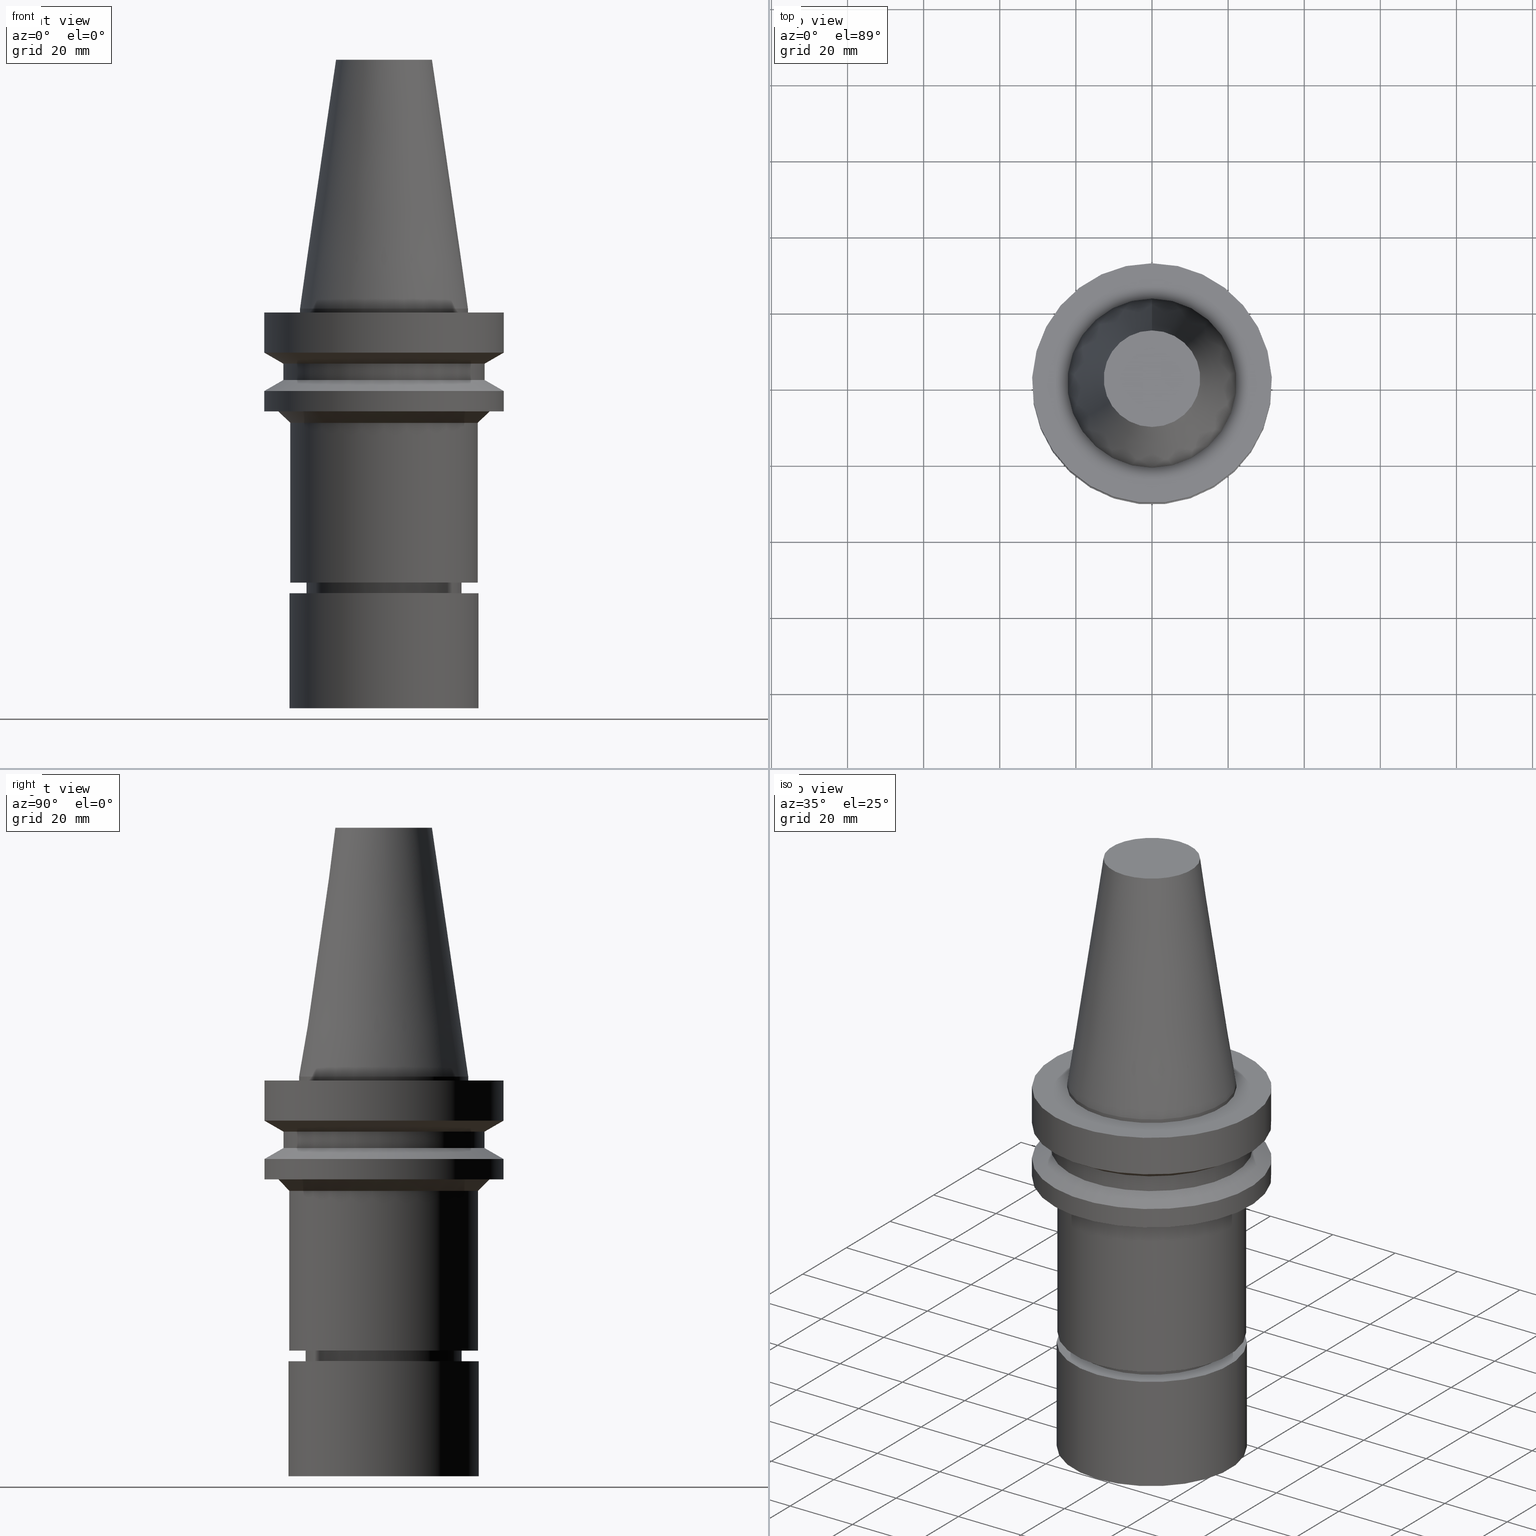
[diagram: canonical four-view strip — front | top / right | iso, engineering-drawing reading convention]
A machine part, canonical four-view strip (front | top / right | iso — engineering-drawing reading convention). The complete STEP part file that produces these views, byte-faithful:
ISO-10303-21;
HEADER;
FILE_DESCRIPTION((''),'1');
FILE_NAME('V:/90_\X2\53D65F9730C730FC30BF\X0\/00_\X2\6DE18DEF30C730FC30BF\X0\/ALL/BBT-BKUS\X2\FF76FF80FF9BFF78FF9E752852A05DE556F3\X0\201801/BBT40-MEGAER/BBT40-MEGAER32-105NL.stp','2018-02-07T02:33:56',(''),(''),'Spatial Interop R21 SP3','Kubotek KeyCreator 2011 V10.0.2 (22737)',' ');
FILE_SCHEMA(('automotive_design'));
ENDSEC;
DATA;
#1=MECHANICAL_DESIGN_GEOMETRIC_PRESENTATION_REPRESENTATION(' ',(#14,#15,#16,#17,#18,#19,#20,#21,#22,#23,#24,#25,#26,#27,#28,#29,#30,#31,#32,#33,#34,#35,#36,#37,#38,#39,#40,#41,#42,#43,#44,#45,#46,#47,#48,#49,#50,#51,#52,#53,#54,#55),#10);
#2=PRODUCT_DEFINITION_CONTEXT('',#56,'design');
#3=APPLICATION_PROTOCOL_DEFINITION('INTERNATIONAL STANDARD','automotive_design',1994,#56);
#4=PRODUCT_CATEGORY_RELATIONSHIP('NONE','NONE',#57,#58);
#5=SHAPE_DEFINITION_REPRESENTATION(#59,#60);
#6=PRODUCT_DEFINITION_CONTEXT('',#61,'design');
#7=APPLICATION_PROTOCOL_DEFINITION('INTERNATIONAL STANDARD','automotive_design',1994,#61);
#8=PRODUCT_CATEGORY_RELATIONSHIP('NONE','NONE',#62,#63);
#9=SHAPE_DEFINITION_REPRESENTATION(#64,#65);
#10= (GEOMETRIC_REPRESENTATION_CONTEXT(3)GLOBAL_UNCERTAINTY_ASSIGNED_CONTEXT((#68))GLOBAL_UNIT_ASSIGNED_CONTEXT((#70,#71,#72))REPRESENTATION_CONTEXT('NONE','WORKSPACE'));
#14=STYLED_ITEM('',(#74,#75),#76);
#15=STYLED_ITEM('',(#77),#78);
#16=STYLED_ITEM('',(#79,#80),#81);
#17=STYLED_ITEM('',(#82,#83),#84);
#18=STYLED_ITEM('',(#85,#86),#87);
#19=STYLED_ITEM('',(#88),#89);
#20=STYLED_ITEM('',(#90),#91);
#21=STYLED_ITEM('',(#92),#93);
#22=STYLED_ITEM('',(#94),#95);
#23=STYLED_ITEM('',(#96),#97);
#24=STYLED_ITEM('',(#98,#99),#100);
#25=STYLED_ITEM('',(#101,#102),#103);
#26=STYLED_ITEM('',(#104,#105),#106);
#27=STYLED_ITEM('',(#107),#108);
#28=STYLED_ITEM('',(#109,#110),#111);
#29=STYLED_ITEM('',(#112,#113),#114);
#30=STYLED_ITEM('',(#115,#116),#117);
#31=STYLED_ITEM('',(#118,#119),#120);
#32=STYLED_ITEM('',(#121,#122),#123);
#33=STYLED_ITEM('',(#124,#125),#126);
#34=STYLED_ITEM('',(#127),#128);
#35=STYLED_ITEM('',(#129,#130),#131);
#36=STYLED_ITEM('',(#132),#133);
#37=STYLED_ITEM('',(#134,#135),#136);
#38=STYLED_ITEM('',(#137,#138),#139);
#39=STYLED_ITEM('',(#140),#141);
#40=STYLED_ITEM('',(#142),#143);
#41=STYLED_ITEM('',(#144),#145);
#42=STYLED_ITEM('',(#146,#147),#148);
#43=STYLED_ITEM('',(#149,#150),#151);
#44=STYLED_ITEM('',(#152,#153),#154);
#45=STYLED_ITEM('',(#155,#156),#157);
#46=STYLED_ITEM('',(#158),#159);
#47=STYLED_ITEM('',(#160,#161),#162);
#48=STYLED_ITEM('',(#163,#164),#165);
#49=STYLED_ITEM('',(#166),#167);
#50=STYLED_ITEM('',(#168,#169),#170);
#51=STYLED_ITEM('',(#171),#172);
#52=STYLED_ITEM('',(#173),#174);
#53=STYLED_ITEM('',(#175),#176);
#54=STYLED_ITEM('',(#177),#178);
#55=STYLED_ITEM('',(#179),#180);
#56=APPLICATION_CONTEXT(' ');
#57=PRODUCT_CATEGORY('part','NONE');
#58=PRODUCT_RELATED_PRODUCT_CATEGORY('detail',' ',(#181));
#59=PRODUCT_DEFINITION_SHAPE('NONE','NONE',#182);
#60=ADVANCED_BREP_SHAPE_REPRESENTATION('Unnamed[1]',(#120,#183),#10);
#61=APPLICATION_CONTEXT(' ');
#62=PRODUCT_CATEGORY('part','NONE');
#63=PRODUCT_RELATED_PRODUCT_CATEGORY('detail',' ',(#184));
#64=PRODUCT_DEFINITION_SHAPE('NONE','NONE',#185);
#65=ADVANCED_BREP_SHAPE_REPRESENTATION('Unnamed[1]',(#76,#186),#10);
#68=UNCERTAINTY_MEASURE_WITH_UNIT(LENGTH_MEASURE(1.0E-006),#70,'','');
#70= (CONVERSION_BASED_UNIT('MILLIMETRE',#189)LENGTH_UNIT()NAMED_UNIT(#192));
#71= (NAMED_UNIT(#194)PLANE_ANGLE_UNIT()SI_UNIT($,.RADIAN.));
#72= (NAMED_UNIT(#194)SOLID_ANGLE_UNIT()SI_UNIT($,.STERADIAN.));
#74=PRESENTATION_STYLE_ASSIGNMENT((#200));
#75=PRESENTATION_STYLE_ASSIGNMENT((#201));
#76=MANIFOLD_SOLID_BREP('Unnamed[1]',#202);
#77=PRESENTATION_STYLE_ASSIGNMENT((#203));
#78=EDGE_CURVE('Unnamed[1]',#204,#204,#205,.T.);
#79=PRESENTATION_STYLE_ASSIGNMENT((#206));
#80=PRESENTATION_STYLE_ASSIGNMENT((#207));
#81=ADVANCED_FACE('Unnamed[1]',(#208,#209),#210,.T.);
#82=PRESENTATION_STYLE_ASSIGNMENT((#211));
#83=PRESENTATION_STYLE_ASSIGNMENT((#212));
#84=ADVANCED_FACE('Unnamed[1]',(#213,#214),#215,.T.);
#85=PRESENTATION_STYLE_ASSIGNMENT((#216));
#86=PRESENTATION_STYLE_ASSIGNMENT((#217));
#87=ADVANCED_FACE('Unnamed[1]',(#218,#219),#220,.T.);
#88=PRESENTATION_STYLE_ASSIGNMENT((#221));
#89=EDGE_CURVE('Unnamed[1]',#222,#222,#223,.T.);
#90=PRESENTATION_STYLE_ASSIGNMENT((#224));
#91=EDGE_CURVE('Unnamed[1]',#225,#225,#226,.T.);
#92=PRESENTATION_STYLE_ASSIGNMENT((#227));
#93=EDGE_CURVE('Unnamed[1]',#228,#228,#229,.T.);
#94=PRESENTATION_STYLE_ASSIGNMENT((#230));
#95=EDGE_CURVE('Unnamed[1]',#231,#231,#232,.T.);
#96=PRESENTATION_STYLE_ASSIGNMENT((#233));
#97=EDGE_CURVE('Unnamed[1]',#234,#234,#235,.T.);
#98=PRESENTATION_STYLE_ASSIGNMENT((#236));
#99=PRESENTATION_STYLE_ASSIGNMENT((#237));
#100=ADVANCED_FACE('Unnamed[1]',(#238,#239),#240,.T.);
#101=PRESENTATION_STYLE_ASSIGNMENT((#241));
#102=PRESENTATION_STYLE_ASSIGNMENT((#242));
#103=ADVANCED_FACE('Unnamed[1]',(#243,#244),#245,.T.);
#104=PRESENTATION_STYLE_ASSIGNMENT((#246));
#105=PRESENTATION_STYLE_ASSIGNMENT((#247));
#106=ADVANCED_FACE('Unnamed[1]',(#248,#249),#250,.T.);
#107=PRESENTATION_STYLE_ASSIGNMENT((#251));
#108=EDGE_CURVE('Unnamed[1]',#252,#252,#253,.T.);
#109=PRESENTATION_STYLE_ASSIGNMENT((#254));
#110=PRESENTATION_STYLE_ASSIGNMENT((#255));
#111=ADVANCED_FACE('Unnamed[1]',(#256,#257),#258,.T.);
#112=PRESENTATION_STYLE_ASSIGNMENT((#259));
#113=PRESENTATION_STYLE_ASSIGNMENT((#260));
#114=ADVANCED_FACE('Unnamed[1]',(#261,#262),#263,.T.);
#115=PRESENTATION_STYLE_ASSIGNMENT((#264));
#116=PRESENTATION_STYLE_ASSIGNMENT((#265));
#117=ADVANCED_FACE('Unnamed[1]',(#266,#267),#268,.T.);
#118=PRESENTATION_STYLE_ASSIGNMENT((#269));
#119=PRESENTATION_STYLE_ASSIGNMENT((#270));
#120=MANIFOLD_SOLID_BREP('Unnamed[1]',#271);
#121=PRESENTATION_STYLE_ASSIGNMENT((#272));
#122=PRESENTATION_STYLE_ASSIGNMENT((#273));
#123=ADVANCED_FACE('Unnamed[1]',(#274,#275),#276,.T.);
#124=PRESENTATION_STYLE_ASSIGNMENT((#277));
#125=PRESENTATION_STYLE_ASSIGNMENT((#278));
#126=ADVANCED_FACE('Unnamed[1]',(#279,#280),#281,.T.);
#127=PRESENTATION_STYLE_ASSIGNMENT((#282));
#128=EDGE_CURVE('Unnamed[1]',#283,#283,#284,.T.);
#129=PRESENTATION_STYLE_ASSIGNMENT((#285));
#130=PRESENTATION_STYLE_ASSIGNMENT((#286));
#131=ADVANCED_FACE('Unnamed[1]',(#287),#288,.T.);
#132=PRESENTATION_STYLE_ASSIGNMENT((#289));
#133=EDGE_CURVE('Unnamed[1]',#290,#290,#291,.T.);
#134=PRESENTATION_STYLE_ASSIGNMENT((#292));
#135=PRESENTATION_STYLE_ASSIGNMENT((#293));
#136=ADVANCED_FACE('Unnamed[1]',(#294,#295),#296,.T.);
#137=PRESENTATION_STYLE_ASSIGNMENT((#297));
#138=PRESENTATION_STYLE_ASSIGNMENT((#298));
#139=ADVANCED_FACE('Unnamed[1]',(#299,#300),#301,.T.);
#140=PRESENTATION_STYLE_ASSIGNMENT((#302));
#141=EDGE_CURVE('Unnamed[1]',#303,#303,#304,.T.);
#142=PRESENTATION_STYLE_ASSIGNMENT((#305));
#143=EDGE_CURVE('Unnamed[1]',#306,#306,#307,.T.);
#144=PRESENTATION_STYLE_ASSIGNMENT((#308));
#145=EDGE_CURVE('Unnamed[1]',#309,#309,#310,.T.);
#146=PRESENTATION_STYLE_ASSIGNMENT((#311));
#147=PRESENTATION_STYLE_ASSIGNMENT((#312));
#148=ADVANCED_FACE('Unnamed[1]',(#313),#314,.T.);
#149=PRESENTATION_STYLE_ASSIGNMENT((#315));
#150=PRESENTATION_STYLE_ASSIGNMENT((#316));
#151=ADVANCED_FACE('Unnamed[1]',(#317),#318,.T.);
#152=PRESENTATION_STYLE_ASSIGNMENT((#319));
#153=PRESENTATION_STYLE_ASSIGNMENT((#320));
#154=ADVANCED_FACE('Unnamed[1]',(#321,#322),#323,.T.);
#155=PRESENTATION_STYLE_ASSIGNMENT((#324));
#156=PRESENTATION_STYLE_ASSIGNMENT((#325));
#157=ADVANCED_FACE('Unnamed[1]',(#326),#327,.T.);
#158=PRESENTATION_STYLE_ASSIGNMENT((#328));
#159=EDGE_CURVE('Unnamed[1]',#329,#329,#330,.T.);
#160=PRESENTATION_STYLE_ASSIGNMENT((#331));
#161=PRESENTATION_STYLE_ASSIGNMENT((#332));
#162=ADVANCED_FACE('Unnamed[1]',(#333,#334),#335,.T.);
#163=PRESENTATION_STYLE_ASSIGNMENT((#336));
#164=PRESENTATION_STYLE_ASSIGNMENT((#337));
#165=ADVANCED_FACE('Unnamed[1]',(#338,#339),#340,.T.);
#166=PRESENTATION_STYLE_ASSIGNMENT((#341));
#167=EDGE_CURVE('Unnamed[1]',#342,#342,#343,.T.);
#168=PRESENTATION_STYLE_ASSIGNMENT((#344));
#169=PRESENTATION_STYLE_ASSIGNMENT((#345));
#170=ADVANCED_FACE('Unnamed[1]',(#346,#347),#348,.F.);
#171=PRESENTATION_STYLE_ASSIGNMENT((#349));
#172=EDGE_CURVE('Unnamed[1]',#350,#350,#351,.T.);
#173=PRESENTATION_STYLE_ASSIGNMENT((#352));
#174=EDGE_CURVE('Unnamed[1]',#353,#353,#354,.T.);
#175=PRESENTATION_STYLE_ASSIGNMENT((#355));
#176=EDGE_CURVE('Unnamed[1]',#356,#356,#357,.T.);
#177=PRESENTATION_STYLE_ASSIGNMENT((#358));
#178=EDGE_CURVE('Unnamed[1]',#359,#359,#360,.T.);
#179=PRESENTATION_STYLE_ASSIGNMENT((#361));
#180=EDGE_CURVE('Unnamed[1]',#362,#362,#363,.T.);
#181=PRODUCT('Unnamed[1]','Unnamed[1]','PART-Unnamed[1]-DESC',(#364));
#182=PRODUCT_DEFINITION('NONE','NONE',#365,#2);
#183=AXIS2_PLACEMENT_3D('',#366,#367,#368);
#184=PRODUCT('Unnamed[1]','Unnamed[1]','PART-Unnamed[1]-DESC',(#369));
#185=PRODUCT_DEFINITION('NONE','NONE',#370,#6);
#186=AXIS2_PLACEMENT_3D('',#371,#372,#373);
#189=LENGTH_MEASURE_WITH_UNIT(LENGTH_MEASURE(1.0),#374);
#192=DIMENSIONAL_EXPONENTS(1.0,0.0,0.0,0.0,0.0,0.0,0.0);
#194=DIMENSIONAL_EXPONENTS(0.0,0.0,0.0,0.0,0.0,0.0,0.0);
#200=SURFACE_STYLE_USAGE(.BOTH.,#375);
#201=CURVE_STYLE('',#376,POSITIVE_LENGTH_MEASURE(1000.0),#377);
#202=CLOSED_SHELL('',(#157,#151,#165));
#203=CURVE_STYLE('',#378,POSITIVE_LENGTH_MEASURE(1000.0),#379);
#204=VERTEX_POINT('',#380);
#205=CIRCLE('',#381,27.8000000024396);
#206=SURFACE_STYLE_USAGE(.BOTH.,#382);
#207=CURVE_STYLE('',#383,POSITIVE_LENGTH_MEASURE(1000.0),#384);
#208=FACE_BOUND('',#385,.T.);
#209=FACE_BOUND('',#386,.T.);
#210=CONICAL_SURFACE('',#387,29.0000000000003,1.04719755119651);
#211=SURFACE_STYLE_USAGE(.BOTH.,#388);
#212=CURVE_STYLE('',#389,POSITIVE_LENGTH_MEASURE(1000.0),#390);
#213=FACE_BOUND('',#391,.T.);
#214=FACE_BOUND('',#392,.T.);
#215=CYLINDRICAL_SURFACE('',#393,26.4999999999997);
#216=SURFACE_STYLE_USAGE(.BOTH.,#394);
#217=CURVE_STYLE('',#395,POSITIVE_LENGTH_MEASURE(1000.0),#396);
#218=FACE_BOUND('',#397,.T.);
#219=FACE_BOUND('',#398,.T.);
#220=CONICAL_SURFACE('',#399,28.9999999999998,1.04719755119657);
#221=CURVE_STYLE('',#400,POSITIVE_LENGTH_MEASURE(1000.0),#401);
#222=VERTEX_POINT('',#402);
#223=CIRCLE('',#403,31.5000000000003);
#224=CURVE_STYLE('',#404,POSITIVE_LENGTH_MEASURE(1000.0),#405);
#225=VERTEX_POINT('',#406);
#226=CIRCLE('',#407,26.5);
#227=CURVE_STYLE('',#408,POSITIVE_LENGTH_MEASURE(1000.0),#409);
#228=VERTEX_POINT('',#410);
#229=CIRCLE('',#411,24.9999999999999);
#230=CURVE_STYLE('',#412,POSITIVE_LENGTH_MEASURE(1000.0),#413);
#231=VERTEX_POINT('',#414);
#232=CIRCLE('',#415,12.6875000000001);
#233=CURVE_STYLE('',#416,POSITIVE_LENGTH_MEASURE(1000.0),#417);
#234=VERTEX_POINT('',#418);
#235=CIRCLE('',#419,31.4999999999996);
#236=SURFACE_STYLE_USAGE(.BOTH.,#420);
#237=CURVE_STYLE('',#421,POSITIVE_LENGTH_MEASURE(1000.0),#422);
#238=FACE_BOUND('',#423,.T.);
#239=FACE_BOUND('',#424,.T.);
#240=CYLINDRICAL_SURFACE('',#425,31.5);
#241=SURFACE_STYLE_USAGE(.BOTH.,#426);
#242=CURVE_STYLE('',#427,POSITIVE_LENGTH_MEASURE(1000.0),#428);
#243=FACE_BOUND('',#429,.T.);
#244=FACE_BOUND('',#430,.T.);
#245=CONICAL_SURFACE('',#431,26.3000000012196,0.78539816337426);
#246=SURFACE_STYLE_USAGE(.BOTH.,#432);
#247=CURVE_STYLE('',#433,POSITIVE_LENGTH_MEASURE(1000.0),#434);
#248=FACE_BOUND('',#435,.T.);
#249=FACE_BOUND('',#436,.T.);
#250=CYLINDRICAL_SURFACE('',#437,20.499999999996);
#251=CURVE_STYLE('',#438,POSITIVE_LENGTH_MEASURE(1000.0),#439);
#252=VERTEX_POINT('',#440);
#253=CIRCLE('',#441,22.225);
#254=SURFACE_STYLE_USAGE(.BOTH.,#442);
#255=CURVE_STYLE('',#443,POSITIVE_LENGTH_MEASURE(1000.0),#444);
#256=FACE_OUTER_BOUND('',#445,.T.);
#257=FACE_BOUND('',#446,.T.);
#258=PLANE('',#447);
#259=SURFACE_STYLE_USAGE(.BOTH.,#448);
#260=CURVE_STYLE('',#449,POSITIVE_LENGTH_MEASURE(1000.0),#450);
#261=FACE_BOUND('',#451,.T.);
#262=FACE_BOUND('',#452,.T.);
#263=CYLINDRICAL_SURFACE('',#453,19.9999999999999);
#264=SURFACE_STYLE_USAGE(.BOTH.,#454);
#265=CURVE_STYLE('',#455,POSITIVE_LENGTH_MEASURE(1000.0),#456);
#266=FACE_BOUND('',#457,.T.);
#267=FACE_BOUND('',#458,.T.);
#268=CONICAL_SURFACE('',#459,19.4499999999998,0.523598775598222);
#269=SURFACE_STYLE_USAGE(.BOTH.,#460);
#270=CURVE_STYLE('',#461,POSITIVE_LENGTH_MEASURE(1000.0),#462);
#271=CLOSED_SHELL('',(#148,#154,#139,#111,#100,#87,#84,#81,#126,#170,#103,#123,#136,#106,#162,#114,#117,#131));
#272=SURFACE_STYLE_USAGE(.BOTH.,#463);
#273=CURVE_STYLE('',#464,POSITIVE_LENGTH_MEASURE(1000.0),#465);
#274=FACE_BOUND('',#466,.T.);
#275=FACE_BOUND('',#467,.T.);
#276=CYLINDRICAL_SURFACE('',#468,24.7999999999999);
#277=SURFACE_STYLE_USAGE(.BOTH.,#469);
#278=CURVE_STYLE('',#470,POSITIVE_LENGTH_MEASURE(1000.0),#471);
#279=FACE_BOUND('',#472,.T.);
#280=FACE_BOUND('',#473,.T.);
#281=CYLINDRICAL_SURFACE('',#474,31.5000000000005);
#282=CURVE_STYLE('',#475,POSITIVE_LENGTH_MEASURE(1000.0),#476);
#283=VERTEX_POINT('',#477);
#284=CIRCLE('',#478,31.5000000000006);
#285=SURFACE_STYLE_USAGE(.BOTH.,#479);
#286=CURVE_STYLE('',#480,POSITIVE_LENGTH_MEASURE(1000.0),#481);
#287=FACE_OUTER_BOUND('',#482,.T.);
#288=PLANE('',#483);
#289=CURVE_STYLE('',#484,POSITIVE_LENGTH_MEASURE(1000.0),#485);
#290=VERTEX_POINT('',#486);
#291=CIRCLE('',#487,18.8999999999996);
#292=SURFACE_STYLE_USAGE(.BOTH.,#488);
#293=CURVE_STYLE('',#489,POSITIVE_LENGTH_MEASURE(1000.0),#490);
#294=FACE_BOUND('',#491,.T.);
#295=FACE_OUTER_BOUND('',#492,.T.);
#296=PLANE('',#493);
#297=SURFACE_STYLE_USAGE(.BOTH.,#494);
#298=CURVE_STYLE('',#495,POSITIVE_LENGTH_MEASURE(1000.0),#496);
#299=FACE_BOUND('',#497,.T.);
#300=FACE_BOUND('',#498,.T.);
#301=CYLINDRICAL_SURFACE('',#499,22.225);
#302=CURVE_STYLE('',#500,POSITIVE_LENGTH_MEASURE(1000.0),#501);
#303=VERTEX_POINT('',#502);
#304=CIRCLE('',#503,26.4999999999994);
#305=CURVE_STYLE('',#504,POSITIVE_LENGTH_MEASURE(1000.0),#505);
#306=VERTEX_POINT('',#506);
#307=CIRCLE('',#507,20.5000000000011);
#308=CURVE_STYLE('',#508,POSITIVE_LENGTH_MEASURE(1000.0),#509);
#309=VERTEX_POINT('',#510);
#310=CIRCLE('',#511,22.225);
#311=SURFACE_STYLE_USAGE(.BOTH.,#512);
#312=CURVE_STYLE('',#513,POSITIVE_LENGTH_MEASURE(1000.0),#514);
#313=FACE_OUTER_BOUND('',#515,.T.);
#314=PLANE('',#516);
#315=SURFACE_STYLE_USAGE(.BOTH.,#517);
#316=CURVE_STYLE('',#518,POSITIVE_LENGTH_MEASURE(1000.0),#519);
#317=FACE_OUTER_BOUND('',#520,.T.);
#318=PLANE('',#521);
#319=SURFACE_STYLE_USAGE(.BOTH.,#522);
#320=CURVE_STYLE('',#523,POSITIVE_LENGTH_MEASURE(1000.0),#524);
#321=FACE_BOUND('',#525,.T.);
#322=FACE_BOUND('',#526,.T.);
#323=CONICAL_SURFACE('',#527,17.45625,0.144812498238936);
#324=SURFACE_STYLE_USAGE(.BOTH.,#528);
#325=CURVE_STYLE('',#529,POSITIVE_LENGTH_MEASURE(1000.0),#530);
#326=FACE_OUTER_BOUND('',#531,.T.);
#327=PLANE('',#532);
#328=CURVE_STYLE('',#533,POSITIVE_LENGTH_MEASURE(1000.0),#534);
#329=VERTEX_POINT('',#535);
#330=CIRCLE('',#536,24.7999999999997);
#331=SURFACE_STYLE_USAGE(.BOTH.,#537);
#332=CURVE_STYLE('',#538,POSITIVE_LENGTH_MEASURE(1000.0),#539);
#333=FACE_BOUND('',#540,.T.);
#334=FACE_BOUND('',#541,.T.);
#335=CONICAL_SURFACE('',#542,20.2500000000005,1.04719755120247);
#336=SURFACE_STYLE_USAGE(.BOTH.,#543);
#337=CURVE_STYLE('',#544,POSITIVE_LENGTH_MEASURE(1000.0),#545);
#338=FACE_BOUND('',#546,.T.);
#339=FACE_BOUND('',#547,.T.);
#340=CYLINDRICAL_SURFACE('',#548,24.9999999999999);
#341=CURVE_STYLE('',#549,POSITIVE_LENGTH_MEASURE(1000.0),#550);
#342=VERTEX_POINT('',#551);
#343=CIRCLE('',#552,20.499999999991);
#344=SURFACE_STYLE_USAGE(.BOTH.,#553);
#345=CURVE_STYLE('',#554,POSITIVE_LENGTH_MEASURE(1000.0),#555);
#346=FACE_BOUND('',#556,.T.);
#347=FACE_BOUND('',#557,.T.);
#348=CONICAL_SURFACE('',#558,29.65000000122,1.57075486116235);
#349=CURVE_STYLE('',#559,POSITIVE_LENGTH_MEASURE(1000.0),#560);
#350=VERTEX_POINT('',#561);
#351=CIRCLE('',#562,19.9999999999999);
#352=CURVE_STYLE('',#563,POSITIVE_LENGTH_MEASURE(1000.0),#564);
#353=VERTEX_POINT('',#565);
#354=CIRCLE('',#566,31.5000000000003);
#355=CURVE_STYLE('',#567,POSITIVE_LENGTH_MEASURE(1000.0),#568);
#356=VERTEX_POINT('',#569);
#357=CIRCLE('',#570,19.9999999999999);
#358=CURVE_STYLE('',#571,POSITIVE_LENGTH_MEASURE(1000.0),#572);
#359=VERTEX_POINT('',#573);
#360=CIRCLE('',#574,24.9999999999999);
#361=CURVE_STYLE('',#575,POSITIVE_LENGTH_MEASURE(1000.0),#576);
#362=VERTEX_POINT('',#577);
#363=CIRCLE('',#578,24.8000000000002);
#364=PRODUCT_CONTEXT('',#56,'mechanical');
#365=PRODUCT_DEFINITION_FORMATION_WITH_SPECIFIED_SOURCE(' ','NONE',#181,.NOT_KNOWN.);
#366=CARTESIAN_POINT('',(0.0,0.0,0.0));
#367=DIRECTION('',(0.0,0.0,1.0));
#368=DIRECTION('',(1.0,0.0,0.0));
#369=PRODUCT_CONTEXT('',#61,'mechanical');
#370=PRODUCT_DEFINITION_FORMATION_WITH_SPECIFIED_SOURCE(' ','NONE',#184,.NOT_KNOWN.);
#371=CARTESIAN_POINT('',(0.0,0.0,0.0));
#372=DIRECTION('',(0.0,0.0,1.0));
#373=DIRECTION('',(1.0,0.0,0.0));
#374= (NAMED_UNIT(#192)LENGTH_UNIT()SI_UNIT(.MILLI.,.METRE.));
#375=SURFACE_SIDE_STYLE('',(#580));
#376=DRAUGHTING_PRE_DEFINED_CURVE_FONT('continuous');
#377=COLOUR_RGB('',0.0,1.0,0.0);
#378=DRAUGHTING_PRE_DEFINED_CURVE_FONT('continuous');
#379=COLOUR_RGB('',0.0,1.0,0.0);
#380=CARTESIAN_POINT('',(1.65327343275269E-015,27.8000000024397,-27.0000041465632));
#381=AXIS2_PLACEMENT_3D('',#581,#582,#583);
#382=SURFACE_SIDE_STYLE('',(#584));
#383=DRAUGHTING_PRE_DEFINED_CURVE_FONT('continuous');
#384=COLOUR_RGB('',0.0,1.0,0.0);
#385=EDGE_LOOP('',(#585));
#386=EDGE_LOOP('',(#586));
#387=AXIS2_PLACEMENT_3D('',#587,#588,#589);
#388=SURFACE_SIDE_STYLE('',(#590));
#389=DRAUGHTING_PRE_DEFINED_CURVE_FONT('continuous');
#390=COLOUR_RGB('',0.0,1.0,0.0);
#391=EDGE_LOOP('',(#591));
#392=EDGE_LOOP('',(#592));
#393=AXIS2_PLACEMENT_3D('',#593,#594,#595);
#394=SURFACE_SIDE_STYLE('',(#596));
#395=DRAUGHTING_PRE_DEFINED_CURVE_FONT('continuous');
#396=COLOUR_RGB('',0.0,1.0,0.0);
#397=EDGE_LOOP('',(#597));
#398=EDGE_LOOP('',(#598));
#399=AXIS2_PLACEMENT_3D('',#599,#600,#601);
#400=DRAUGHTING_PRE_DEFINED_CURVE_FONT('continuous');
#401=COLOUR_RGB('',0.0,1.0,0.0);
#402=CARTESIAN_POINT('',(7.08182973902924E-016,31.5000000000004,-11.5655056526664));
#403=AXIS2_PLACEMENT_3D('',#602,#603,#604);
#404=DRAUGHTING_PRE_DEFINED_CURVE_FONT('continuous');
#405=COLOUR_RGB('',0.0,1.0,0.0);
#406=CARTESIAN_POINT('',(1.1479681728942E-015,26.5,-18.7477430013855));
#407=AXIS2_PLACEMENT_3D('',#605,#606,#607);
#408=DRAUGHTING_PRE_DEFINED_CURVE_FONT('continuous');
#409=COLOUR_RGB('',0.0,1.0,0.0);
#410=CARTESIAN_POINT('',(4.5801790288111E-015,25.0,-74.8));
#411=AXIS2_PLACEMENT_3D('',#608,#609,#610);
#412=DRAUGHTING_PRE_DEFINED_CURVE_FONT('continuous');
#413=COLOUR_RGB('',0.0,1.0,0.0);
#414=CARTESIAN_POINT('',(-4.00459503321185E-015,12.6875000000002,65.4000000000001));
#415=AXIS2_PLACEMENT_3D('',#611,#612,#613);
#416=DRAUGHTING_PRE_DEFINED_CURVE_FONT('continuous');
#417=COLOUR_RGB('',0.0,1.0,0.0);
#418=CARTESIAN_POINT('',(6.12323399573568E-017,31.4999999999997,-0.999999999999825));
#419=AXIS2_PLACEMENT_3D('',#614,#615,#616);
#420=SURFACE_SIDE_STYLE('',(#617));
#421=DRAUGHTING_PRE_DEFINED_CURVE_FONT('continuous');
#422=COLOUR_RGB('',0.0,1.0,0.0);
#423=EDGE_LOOP('',(#618));
#424=EDGE_LOOP('',(#619));
#425=AXIS2_PLACEMENT_3D('',#620,#621,#622);
#426=SURFACE_SIDE_STYLE('',(#623));
#427=DRAUGHTING_PRE_DEFINED_CURVE_FONT('continuous');
#428=COLOUR_RGB('',0.0,1.0,0.0);
#429=EDGE_LOOP('',(#624));
#430=EDGE_LOOP('',(#625));
#431=AXIS2_PLACEMENT_3D('',#626,#627,#628);
#432=SURFACE_SIDE_STYLE('',(#629));
#433=DRAUGHTING_PRE_DEFINED_CURVE_FONT('continuous');
#434=COLOUR_RGB('',0.0,1.0,0.0);
#435=EDGE_LOOP('',(#630));
#436=EDGE_LOOP('',(#631));
#437=AXIS2_PLACEMENT_3D('',#632,#633,#634);
#438=DRAUGHTING_PRE_DEFINED_CURVE_FONT('continuous');
#439=COLOUR_RGB('',0.0,1.0,0.0);
#440=CARTESIAN_POINT('',(6.12323399573622E-017,22.2250000000001,-0.999999999999912));
#441=AXIS2_PLACEMENT_3D('',#635,#636,#637);
#442=SURFACE_SIDE_STYLE('',(#638));
#443=DRAUGHTING_PRE_DEFINED_CURVE_FONT('continuous');
#444=COLOUR_RGB('',0.0,1.0,0.0);
#445=EDGE_LOOP('',(#639));
#446=EDGE_LOOP('',(#640));
#447=AXIS2_PLACEMENT_3D('',#641,#642,#643);
#448=SURFACE_SIDE_STYLE('',(#644));
#449=DRAUGHTING_PRE_DEFINED_CURVE_FONT('continuous');
#450=COLOUR_RGB('',0.0,1.0,0.0);
#451=EDGE_LOOP('',(#645));
#452=EDGE_LOOP('',(#646));
#453=AXIS2_PLACEMENT_3D('',#647,#648,#649);
#454=SURFACE_SIDE_STYLE('',(#650));
#455=DRAUGHTING_PRE_DEFINED_CURVE_FONT('continuous');
#456=COLOUR_RGB('',0.0,1.0,0.0);
#457=EDGE_LOOP('',(#651));
#458=EDGE_LOOP('',(#652));
#459=AXIS2_PLACEMENT_3D('',#653,#654,#655);
#460=SURFACE_SIDE_STYLE('',(#656));
#461=DRAUGHTING_PRE_DEFINED_CURVE_FONT('continuous');
#462=COLOUR_RGB('',0.0,1.0,0.0);
#463=SURFACE_SIDE_STYLE('',(#657));
#464=DRAUGHTING_PRE_DEFINED_CURVE_FONT('continuous');
#465=COLOUR_RGB('',0.0,1.0,0.0);
#466=EDGE_LOOP('',(#658));
#467=EDGE_LOOP('',(#659));
#468=AXIS2_PLACEMENT_3D('',#660,#661,#662);
#469=SURFACE_SIDE_STYLE('',(#663));
#470=DRAUGHTING_PRE_DEFINED_CURVE_FONT('continuous');
#471=COLOUR_RGB('',0.0,1.0,0.0);
#472=EDGE_LOOP('',(#664));
#473=EDGE_LOOP('',(#665));
#474=AXIS2_PLACEMENT_3D('',#666,#667,#668);
#475=DRAUGHTING_PRE_DEFINED_CURVE_FONT('continuous');
#476=COLOUR_RGB('',0.0,1.0,0.0);
#477=CARTESIAN_POINT('',(1.32473071268174E-015,31.5000000000007,-21.6344943473346));
#478=AXIS2_PLACEMENT_3D('',#669,#670,#671);
#479=SURFACE_SIDE_STYLE('',(#672));
#480=DRAUGHTING_PRE_DEFINED_CURVE_FONT('continuous');
#481=COLOUR_RGB('',0.0,1.0,0.0);
#482=EDGE_LOOP('',(#673));
#483=AXIS2_PLACEMENT_3D('',#674,#675,#676);
#484=DRAUGHTING_PRE_DEFINED_CURVE_FONT('continuous');
#485=COLOUR_RGB('',0.0,1.0,0.0);
#486=CARTESIAN_POINT('',(5.75583995599257E-015,18.8999999999997,-94.0000000000001));
#487=AXIS2_PLACEMENT_3D('',#677,#678,#679);
#488=SURFACE_SIDE_STYLE('',(#680));
#489=DRAUGHTING_PRE_DEFINED_CURVE_FONT('continuous');
#490=COLOUR_RGB('',0.0,1.0,0.0);
#491=EDGE_LOOP('',(#681));
#492=EDGE_LOOP('',(#682));
#493=AXIS2_PLACEMENT_3D('',#683,#684,#685);
#494=SURFACE_SIDE_STYLE('',(#686));
#495=DRAUGHTING_PRE_DEFINED_CURVE_FONT('continuous');
#496=COLOUR_RGB('',0.0,1.0,0.0);
#497=EDGE_LOOP('',(#687));
#498=EDGE_LOOP('',(#688));
#499=AXIS2_PLACEMENT_3D('',#689,#690,#691);
#500=DRAUGHTING_PRE_DEFINED_CURVE_FONT('continuous');
#501=COLOUR_RGB('',0.0,1.0,0.0);
#502=CARTESIAN_POINT('',(8.8494551369045E-016,26.4999999999995,-14.4522569986152));
#503=AXIS2_PLACEMENT_3D('',#692,#693,#694);
#504=DRAUGHTING_PRE_DEFINED_CURVE_FONT('continuous');
#505=COLOUR_RGB('',0.0,1.0,0.0);
#506=CARTESIAN_POINT('',(4.78907208101742E-015,20.5000000000011,-78.211482434801));
#507=AXIS2_PLACEMENT_3D('',#695,#696,#697);
#508=DRAUGHTING_PRE_DEFINED_CURVE_FONT('continuous');
#509=COLOUR_RGB('',0.0,1.0,0.0);
#510=CARTESIAN_POINT('',(1.71319921032766E-029,22.2250000000001,-2.8153873565375E-013));
#511=AXIS2_PLACEMENT_3D('',#698,#699,#700);
#512=SURFACE_SIDE_STYLE('',(#701));
#513=DRAUGHTING_PRE_DEFINED_CURVE_FONT('continuous');
#514=COLOUR_RGB('',0.0,1.0,0.0);
#515=EDGE_LOOP('',(#702));
#516=AXIS2_PLACEMENT_3D('',#703,#704,#705);
#517=SURFACE_SIDE_STYLE('',(#706));
#518=DRAUGHTING_PRE_DEFINED_CURVE_FONT('continuous');
#519=COLOUR_RGB('',0.0,1.0,0.0);
#520=EDGE_LOOP('',(#707));
#521=AXIS2_PLACEMENT_3D('',#708,#709,#710);
#522=SURFACE_SIDE_STYLE('',(#711));
#523=DRAUGHTING_PRE_DEFINED_CURVE_FONT('continuous');
#524=COLOUR_RGB('',0.0,1.0,0.0);
#525=EDGE_LOOP('',(#712));
#526=EDGE_LOOP('',(#713));
#527=AXIS2_PLACEMENT_3D('',#714,#715,#716);
#528=SURFACE_SIDE_STYLE('',(#717));
#529=DRAUGHTING_PRE_DEFINED_CURVE_FONT('continuous');
#530=COLOUR_RGB('',0.0,1.0,0.0);
#531=EDGE_LOOP('',(#718));
#532=AXIS2_PLACEMENT_3D('',#719,#720,#721);
#533=DRAUGHTING_PRE_DEFINED_CURVE_FONT('continuous');
#534=COLOUR_RGB('',0.0,1.0,0.0);
#535=CARTESIAN_POINT('',(1.83697045278272E-015,24.7999999999998,-30.0000041491422));
#536=AXIS2_PLACEMENT_3D('',#722,#723,#724);
#537=SURFACE_SIDE_STYLE('',(#725));
#538=DRAUGHTING_PRE_DEFINED_CURVE_FONT('continuous');
#539=COLOUR_RGB('',0.0,1.0,0.0);
#540=EDGE_LOOP('',(#726));
#541=EDGE_LOOP('',(#727));
#542=AXIS2_PLACEMENT_3D('',#728,#729,#730);
#543=SURFACE_SIDE_STYLE('',(#731));
#544=DRAUGHTING_PRE_DEFINED_CURVE_FONT('continuous');
#545=COLOUR_RGB('',0.0,1.0,0.0);
#546=EDGE_LOOP('',(#732));
#547=EDGE_LOOP('',(#733));
#548=AXIS2_PLACEMENT_3D('',#734,#735,#736);
#549=DRAUGHTING_PRE_DEFINED_CURVE_FONT('continuous');
#550=COLOUR_RGB('',0.0,1.0,0.0);
#551=CARTESIAN_POINT('',(4.40873812527381E-015,20.4999999999911,-72.0001575694044));
#552=AXIS2_PLACEMENT_3D('',#737,#738,#739);
#553=SURFACE_SIDE_STYLE('',(#740));
#554=DRAUGHTING_PRE_DEFINED_CURVE_FONT('continuous');
#555=COLOUR_RGB('',0.0,1.0,0.0);
#556=EDGE_LOOP('',(#741));
#557=EDGE_LOOP('',(#742));
#558=AXIS2_PLACEMENT_3D('',#743,#744,#745);
#559=DRAUGHTING_PRE_DEFINED_CURVE_FONT('continuous');
#560=COLOUR_RGB('',0.0,1.0,0.0);
#561=CARTESIAN_POINT('',(5.63917667973277E-015,20.0,-92.0947441116734));
#562=AXIS2_PLACEMENT_3D('',#746,#747,#748);
#563=DRAUGHTING_PRE_DEFINED_CURVE_FONT('continuous');
#564=COLOUR_RGB('',0.0,1.0,0.0);
#565=CARTESIAN_POINT('',(1.65328282719222E-015,31.5000000000004,-27.0001575694036));
#566=AXIS2_PLACEMENT_3D('',#749,#750,#751);
#567=DRAUGHTING_PRE_DEFINED_CURVE_FONT('continuous');
#568=COLOUR_RGB('',0.0,1.0,0.0);
#569=CARTESIAN_POINT('',(4.80674833499597E-015,20.0,-78.5001575693925));
#570=AXIS2_PLACEMENT_3D('',#752,#753,#754);
#571=DRAUGHTING_PRE_DEFINED_CURVE_FONT('continuous');
#572=COLOUR_RGB('',0.0,1.0,0.0);
#573=CARTESIAN_POINT('',(6.4293956955236E-015,25.0,-105.0));
#574=AXIS2_PLACEMENT_3D('',#755,#756,#757);
#575=DRAUGHTING_PRE_DEFINED_CURVE_FONT('continuous');
#576=COLOUR_RGB('',0.0,1.0,0.0);
#577=CARTESIAN_POINT('',(4.40873812527379E-015,24.8000000000003,-72.0001575694041));
#578=AXIS2_PLACEMENT_3D('',#758,#759,#760);
#580=SURFACE_STYLE_FILL_AREA(#761);
#581=CARTESIAN_POINT('',(1.6532734327527E-015,7.5399965903523E-014,-27.0000041465632));
#582=DIRECTION('',(6.12323399573677E-017,-1.89333969124915E-017,-1.0));
#583=DIRECTION('',(-3.66781653447265E-033,1.0,-1.89333969124915E-017));
#584=SURFACE_STYLE_FILL_AREA(#762);
#585=ORIENTED_EDGE('',*,*,#128,.F.);
#586=ORIENTED_EDGE('',*,*,#91,.T.);
#587=CARTESIAN_POINT('',(1.23634944278797E-015,7.55288812347001E-014,-20.1911186743601));
#588=DIRECTION('',(6.12323399573677E-017,-1.89333969124911E-017,-1.0));
#589=DIRECTION('',(-3.66781653447766E-033,1.0,-1.89333969124911E-017));
#590=SURFACE_STYLE_FILL_AREA(#763);
#591=ORIENTED_EDGE('',*,*,#91,.F.);
#592=ORIENTED_EDGE('',*,*,#141,.T.);
#593=CARTESIAN_POINT('',(1.01645684329232E-015,7.55968733099218E-014,-16.6000000000004));
#594=DIRECTION('',(6.12323399573677E-017,-1.89333969125567E-017,-1.0));
#595=DIRECTION('',(-3.66781653446736E-033,1.0,-1.89333969125567E-017));
#596=SURFACE_STYLE_FILL_AREA(#764);
#597=ORIENTED_EDGE('',*,*,#141,.F.);
#598=ORIENTED_EDGE('',*,*,#89,.T.);
#599=CARTESIAN_POINT('',(7.96564243796687E-016,7.56648653851434E-014,-13.0088813256408));
#600=DIRECTION('',(-6.12323399573677E-017,1.89333969124914E-017,1.0));
#601=DIRECTION('',(-3.66781653447154E-033,1.0,-1.89333969124914E-017));
#602=CARTESIAN_POINT('',(7.08182973902924E-016,7.56921933896537E-014,-11.5655056526664));
#603=DIRECTION('',(6.12323399573677E-017,-1.89333969125389E-017,-1.0));
#604=DIRECTION('',(-3.66781653446932E-033,1.0,-1.89333969125389E-017));
#605=CARTESIAN_POINT('',(1.1479681728942E-015,7.55562092392104E-014,-18.7477430013855));
#606=DIRECTION('',(6.12323399573677E-017,-1.89333969125565E-017,-1.0));
#607=DIRECTION('',(-3.66781653446732E-033,1.0,-1.89333969125565E-017));
#608=CARTESIAN_POINT('',(4.5801790288111E-015,7.44949496096127E-014,-74.8));
#609=DIRECTION('',(6.12323399573677E-017,-1.89333969125273E-017,-1.0));
#610=DIRECTION('',(-3.66781653447338E-033,1.0,-1.89333969125273E-017));
#611=CARTESIAN_POINT('',(-4.00459503321185E-015,7.7149411856749E-014,65.4000000000001));
#612=DIRECTION('',(6.12323399573677E-017,-1.8933396912507E-017,-1.0));
#613=DIRECTION('',(-3.66781653447502E-033,1.0,-1.8933396912507E-017));
#614=CARTESIAN_POINT('',(6.12323399573572E-017,7.58922343017572E-014,-0.999999999999829));
#615=DIRECTION('',(6.12323399573677E-017,-1.89333969125393E-017,-1.0));
#616=DIRECTION('',(-3.6678165344694E-033,1.0,-1.89333969125393E-017));
#617=SURFACE_STYLE_FILL_AREA(#765);
#618=ORIENTED_EDGE('',*,*,#89,.F.);
#619=ORIENTED_EDGE('',*,*,#97,.T.);
#620=CARTESIAN_POINT('',(3.84707656930141E-016,7.57922138457055E-014,-6.28275282633309));
#621=DIRECTION('',(6.12323399573677E-017,-1.89333969125391E-017,-1.0));
#622=DIRECTION('',(-3.66781653446936E-033,1.0,-1.89333969125391E-017));
#623=SURFACE_STYLE_FILL_AREA(#766);
#624=ORIENTED_EDGE('',*,*,#159,.F.);
#625=ORIENTED_EDGE('',*,*,#78,.T.);
#626=CARTESIAN_POINT('',(1.74512194276771E-015,7.53715658081298E-014,-28.5000041478527));
#627=DIRECTION('',(-6.12323399573677E-017,1.89333969125245E-017,1.0));
#628=DIRECTION('',(-3.66781653447117E-033,1.0,-1.89333969125245E-017));
#629=SURFACE_STYLE_FILL_AREA(#767);
#630=ORIENTED_EDGE('',*,*,#143,.F.);
#631=ORIENTED_EDGE('',*,*,#167,.T.);
#632=CARTESIAN_POINT('',(4.59890510314562E-015,7.44891593981291E-014,-75.1058200021027));
#633=DIRECTION('',(6.12323399573677E-017,-1.89333969124977E-017,-1.0));
#634=DIRECTION('',(-3.66781653447389E-033,1.0,-1.89333969124977E-017));
#635=CARTESIAN_POINT('',(6.12323399573624E-017,7.58922343017572E-014,-0.999999999999915));
#636=DIRECTION('',(6.12323399573677E-017,-1.89333969125318E-017,-1.0));
#637=DIRECTION('',(-3.66781653447183E-033,1.0,-1.89333969125318E-017));
#638=SURFACE_STYLE_FILL_AREA(#768);
#639=ORIENTED_EDGE('',*,*,#97,.F.);
#640=ORIENTED_EDGE('',*,*,#108,.T.);
#641=CARTESIAN_POINT('',(6.12323399573595E-017,26.8624999999999,-0.999999999999869));
#642=DIRECTION('',(-6.12323399573677E-017,-9.35138060429241E-015,1.0));
#643=DIRECTION('',(5.77434068963536E-031,-1.0,-9.35138060429241E-015));
#644=SURFACE_STYLE_FILL_AREA(#769);
#645=ORIENTED_EDGE('',*,*,#172,.F.);
#646=ORIENTED_EDGE('',*,*,#176,.T.);
#647=CARTESIAN_POINT('',(5.22296250736437E-015,7.42961972062791E-014,-85.297450840533));
#648=DIRECTION('',(6.12323399573677E-017,-1.89333969125276E-017,-1.0));
#649=DIRECTION('',(-3.6678165344757E-033,1.0,-1.89333969125276E-017));
#650=SURFACE_STYLE_FILL_AREA(#770);
#651=ORIENTED_EDGE('',*,*,#133,.F.);
#652=ORIENTED_EDGE('',*,*,#172,.T.);
#653=CARTESIAN_POINT('',(5.69750831786267E-015,7.4149464871869E-014,-93.0473720558368));
#654=DIRECTION('',(-6.12323399573676E-017,1.89333969125583E-017,1.0));
#655=DIRECTION('',(-3.66781653447035E-033,1.0,-1.89333969125583E-017));
#656=SURFACE_STYLE_FILL_AREA(#771);
#657=SURFACE_STYLE_FILL_AREA(#772);
#658=ORIENTED_EDGE('',*,*,#180,.F.);
#659=ORIENTED_EDGE('',*,*,#159,.T.);
#660=CARTESIAN_POINT('',(3.12285428902825E-015,7.49455629251901E-014,-51.0000808592732));
#661=DIRECTION('',(6.12323399573677E-017,-1.89333969125614E-017,-1.0));
#662=DIRECTION('',(-3.66781653447671E-033,1.0,-1.89333969125614E-017));
#663=SURFACE_STYLE_FILL_AREA(#773);
#664=ORIENTED_EDGE('',*,*,#174,.F.);
#665=ORIENTED_EDGE('',*,*,#128,.T.);
#666=CARTESIAN_POINT('',(1.48900676993698E-015,7.54507581144486E-014,-24.3173259583691));
#667=DIRECTION('',(6.12323399573677E-017,-1.89333969125388E-017,-1.0));
#668=DIRECTION('',(-3.6678165344693E-033,1.0,-1.89333969125388E-017));
#669=CARTESIAN_POINT('',(1.32473071268174E-015,7.55015532301898E-014,-21.6344943473346));
#670=DIRECTION('',(6.12323399573677E-017,-1.89333969125387E-017,-1.0));
#671=DIRECTION('',(-3.66781653447498E-033,1.0,-1.89333969125387E-017));
#672=SURFACE_STYLE_FILL_AREA(#774);
#673=ORIENTED_EDGE('',*,*,#133,.T.);
#674=CARTESIAN_POINT('',(5.75583995599256E-015,9.44999999999987,-94.0));
#675=DIRECTION('',(6.12323399573677E-017,-1.41635797427754E-014,-1.0));
#676=DIRECTION('',(8.62441977092141E-031,1.0,-1.41635797427754E-014));
#677=CARTESIAN_POINT('',(5.75583995599257E-015,7.41314283888922E-014,-94.0000000000001));
#678=DIRECTION('',(6.12323399573677E-017,-1.89333969125053E-017,-1.0));
#679=DIRECTION('',(-3.66781653447418E-033,1.0,-1.89333969125053E-017));
#680=SURFACE_STYLE_FILL_AREA(#775);
#681=ORIENTED_EDGE('',*,*,#167,.F.);
#682=ORIENTED_EDGE('',*,*,#180,.T.);
#683=CARTESIAN_POINT('',(4.4087381252738E-015,22.6499999999957,-72.0001575694043));
#684=DIRECTION('',(6.12323399573677E-017,7.94388630901745E-014,-1.0));
#685=DIRECTION('',(-4.86905462329512E-030,1.0,7.94388630901745E-014));
#686=SURFACE_STYLE_FILL_AREA(#776);
#687=ORIENTED_EDGE('',*,*,#108,.F.);
#688=ORIENTED_EDGE('',*,*,#145,.T.);
#689=CARTESIAN_POINT('',(3.06161699786899E-017,7.59017010002135E-014,-0.500000000000099));
#690=DIRECTION('',(6.12323399573677E-017,-1.89333969125318E-017,-1.0));
#691=DIRECTION('',(-3.66781653447183E-033,1.0,-1.89333969125318E-017));
#692=CARTESIAN_POINT('',(8.8494551369045E-016,7.56375373806331E-014,-14.4522569986152));
#693=DIRECTION('',(6.12323399573677E-017,-1.89333969125569E-017,-1.0));
#694=DIRECTION('',(-3.6678165344674E-033,1.0,-1.89333969125569E-017));
#695=CARTESIAN_POINT('',(4.78907208101742E-015,7.44303586586145E-014,-78.211482434801));
#696=DIRECTION('',(6.12323399573677E-017,-1.8933396912493E-017,-1.0));
#697=DIRECTION('',(-3.66781653447736E-033,1.0,-1.8933396912493E-017));
#698=CARTESIAN_POINT('',(1.74032777401202E-029,7.59111676986697E-014,-2.8421709430404E-013));
#699=DIRECTION('',(6.12323399573677E-017,-1.89333969125318E-017,-1.0));
#700=DIRECTION('',(-3.66781653447183E-033,1.0,-1.89333969125318E-017));
#701=SURFACE_STYLE_FILL_AREA(#777);
#702=ORIENTED_EDGE('',*,*,#95,.F.);
#703=CARTESIAN_POINT('',(-4.00459503321185E-015,6.34375000000014,65.4000000000001));
#704=DIRECTION('',(-6.12323399573677E-017,9.97602686800683E-016,1.0));
#705=DIRECTION('',(-5.62583941297938E-032,-1.0,9.97602686800683E-016));
#706=SURFACE_STYLE_FILL_AREA(#778);
#707=ORIENTED_EDGE('',*,*,#93,.F.);
#708=CARTESIAN_POINT('',(4.5801790288111E-015,12.5,-74.8));
#709=DIRECTION('',(-6.12323399573677E-017,-1.22464679914735E-016,1.0));
#710=DIRECTION('',(1.23259516440783E-032,-1.0,-1.22464679914735E-016));
#711=SURFACE_STYLE_FILL_AREA(#779);
#712=ORIENTED_EDGE('',*,*,#145,.F.);
#713=ORIENTED_EDGE('',*,*,#95,.T.);
#714=CARTESIAN_POINT('',(-2.00229751660592E-015,7.65302897777094E-014,32.6999999999999));
#715=DIRECTION('',(6.12323399573677E-017,-1.89333969125691E-017,-1.0));
#716=DIRECTION('',(-3.66781653447042E-033,1.0,-1.89333969125691E-017));
#717=SURFACE_STYLE_FILL_AREA(#780);
#718=ORIENTED_EDGE('',*,*,#178,.T.);
#719=CARTESIAN_POINT('',(6.4293956955236E-015,12.5,-105.0));
#720=DIRECTION('',(6.12323399573677E-017,1.22464679914735E-016,-1.0));
#721=DIRECTION('',(-1.23259516440783E-032,1.0,1.22464679914735E-016));
#722=CARTESIAN_POINT('',(1.83697045278272E-015,7.53431657127365E-014,-30.0000041491422));
#723=DIRECTION('',(6.12323399573677E-017,-1.89333969125616E-017,-1.0));
#724=DIRECTION('',(-3.66781653447675E-033,1.0,-1.89333969125616E-017));
#725=SURFACE_STYLE_FILL_AREA(#781);
#726=ORIENTED_EDGE('',*,*,#176,.F.);
#727=ORIENTED_EDGE('',*,*,#143,.T.);
#728=CARTESIAN_POINT('',(4.7979102080067E-015,7.44276258581635E-014,-78.3558200020968));
#729=DIRECTION('',(-6.12323399573677E-017,1.893339691255E-017,1.0));
#730=DIRECTION('',(-3.66781653447433E-033,1.0,-1.893339691255E-017));
#731=SURFACE_STYLE_FILL_AREA(#782);
#732=ORIENTED_EDGE('',*,*,#178,.F.);
#733=ORIENTED_EDGE('',*,*,#93,.T.);
#734=CARTESIAN_POINT('',(5.50478736216735E-015,7.42090553162335E-014,-89.9));
#735=DIRECTION('',(6.12323399573677E-017,-1.89333969125273E-017,-1.0));
#736=DIRECTION('',(-3.66781653447338E-033,1.0,-1.89333969125273E-017));
#737=CARTESIAN_POINT('',(4.40873812527381E-015,7.45479601376437E-014,-72.0001575694044));
#738=DIRECTION('',(6.12323399573677E-017,-1.89333969125023E-017,-1.0));
#739=DIRECTION('',(-3.66781653447479E-033,1.0,-1.89333969125023E-017));
#740=SURFACE_STYLE_FILL_AREA(#783);
#741=ORIENTED_EDGE('',*,*,#78,.F.);
#742=ORIENTED_EDGE('',*,*,#174,.T.);
#743=CARTESIAN_POINT('',(1.65327812997246E-015,7.53999644511152E-014,-27.0000808579834));
#744=DIRECTION('',(6.12323399573677E-017,-1.89333969125711E-017,-1.0));
#745=DIRECTION('',(-3.66781653447088E-033,1.0,-1.89333969125711E-017));
#746=CARTESIAN_POINT('',(5.63917667973277E-015,7.41675013548458E-014,-92.0947441116734));
#747=DIRECTION('',(6.12323399573676E-017,-1.89333969125276E-017,-1.0));
#748=DIRECTION('',(-3.6678165344757E-033,1.0,-1.89333969125276E-017));
#749=CARTESIAN_POINT('',(1.65328282719222E-015,7.53999629987074E-014,-27.0001575694036));
#750=DIRECTION('',(6.12323399573677E-017,-1.89333969125389E-017,-1.0));
#751=DIRECTION('',(-3.66781653446932E-033,1.0,-1.89333969125389E-017));
#752=CARTESIAN_POINT('',(4.80674833499597E-015,7.44248930577125E-014,-78.5001575693925));
#753=DIRECTION('',(6.12323399573677E-017,-1.89333969125276E-017,-1.0));
#754=DIRECTION('',(-3.66781653447571E-033,1.0,-1.89333969125276E-017));
#755=CARTESIAN_POINT('',(6.4293956955236E-015,7.39231610228544E-014,-105.0));
#756=DIRECTION('',(6.12323399573677E-017,-1.89333969125273E-017,-1.0));
#757=DIRECTION('',(-3.66781653447338E-033,1.0,-1.89333969125273E-017));
#758=CARTESIAN_POINT('',(4.40873812527379E-015,7.45479601376437E-014,-72.0001575694041));
#759=DIRECTION('',(6.12323399573677E-017,-1.89333969125612E-017,-1.0));
#760=DIRECTION('',(-3.66781653447667E-033,1.0,-1.89333969125612E-017));
#761=FILL_AREA_STYLE('',(#784));
#762=FILL_AREA_STYLE('',(#785));
#763=FILL_AREA_STYLE('',(#786));
#764=FILL_AREA_STYLE('',(#787));
#765=FILL_AREA_STYLE('',(#788));
#766=FILL_AREA_STYLE('',(#789));
#767=FILL_AREA_STYLE('',(#790));
#768=FILL_AREA_STYLE('',(#791));
#769=FILL_AREA_STYLE('',(#792));
#770=FILL_AREA_STYLE('',(#793));
#771=FILL_AREA_STYLE('',(#794));
#772=FILL_AREA_STYLE('',(#795));
#773=FILL_AREA_STYLE('',(#796));
#774=FILL_AREA_STYLE('',(#797));
#775=FILL_AREA_STYLE('',(#798));
#776=FILL_AREA_STYLE('',(#799));
#777=FILL_AREA_STYLE('',(#800));
#778=FILL_AREA_STYLE('',(#801));
#779=FILL_AREA_STYLE('',(#802));
#780=FILL_AREA_STYLE('',(#803));
#781=FILL_AREA_STYLE('',(#804));
#782=FILL_AREA_STYLE('',(#805));
#783=FILL_AREA_STYLE('',(#806));
#784=FILL_AREA_STYLE_COLOUR('',#807);
#785=FILL_AREA_STYLE_COLOUR('',#808);
#786=FILL_AREA_STYLE_COLOUR('',#809);
#787=FILL_AREA_STYLE_COLOUR('',#810);
#788=FILL_AREA_STYLE_COLOUR('',#811);
#789=FILL_AREA_STYLE_COLOUR('',#812);
#790=FILL_AREA_STYLE_COLOUR('',#813);
#791=FILL_AREA_STYLE_COLOUR('',#814);
#792=FILL_AREA_STYLE_COLOUR('',#815);
#793=FILL_AREA_STYLE_COLOUR('',#816);
#794=FILL_AREA_STYLE_COLOUR('',#817);
#795=FILL_AREA_STYLE_COLOUR('',#818);
#796=FILL_AREA_STYLE_COLOUR('',#819);
#797=FILL_AREA_STYLE_COLOUR('',#820);
#798=FILL_AREA_STYLE_COLOUR('',#821);
#799=FILL_AREA_STYLE_COLOUR('',#822);
#800=FILL_AREA_STYLE_COLOUR('',#823);
#801=FILL_AREA_STYLE_COLOUR('',#824);
#802=FILL_AREA_STYLE_COLOUR('',#825);
#803=FILL_AREA_STYLE_COLOUR('',#826);
#804=FILL_AREA_STYLE_COLOUR('',#827);
#805=FILL_AREA_STYLE_COLOUR('',#828);
#806=FILL_AREA_STYLE_COLOUR('',#829);
#807=COLOUR_RGB('',0.0,1.0,0.0);
#808=COLOUR_RGB('',0.0,1.0,0.0);
#809=COLOUR_RGB('',0.0,1.0,0.0);
#810=COLOUR_RGB('',0.0,1.0,0.0);
#811=COLOUR_RGB('',0.0,1.0,0.0);
#812=COLOUR_RGB('',0.0,1.0,0.0);
#813=COLOUR_RGB('',0.0,1.0,0.0);
#814=COLOUR_RGB('',0.0,1.0,0.0);
#815=COLOUR_RGB('',0.0,1.0,0.0);
#816=COLOUR_RGB('',0.0,1.0,0.0);
#817=COLOUR_RGB('',0.0,1.0,0.0);
#818=COLOUR_RGB('',0.0,1.0,0.0);
#819=COLOUR_RGB('',0.0,1.0,0.0);
#820=COLOUR_RGB('',0.0,1.0,0.0);
#821=COLOUR_RGB('',0.0,1.0,0.0);
#822=COLOUR_RGB('',0.0,1.0,0.0);
#823=COLOUR_RGB('',0.0,1.0,0.0);
#824=COLOUR_RGB('',0.0,1.0,0.0);
#825=COLOUR_RGB('',0.0,1.0,0.0);
#826=COLOUR_RGB('',0.0,1.0,0.0);
#827=COLOUR_RGB('',0.0,1.0,0.0);
#828=COLOUR_RGB('',0.0,1.0,0.0);
#829=COLOUR_RGB('',0.0,1.0,0.0);
ENDSEC;
END-ISO-10303-21;
